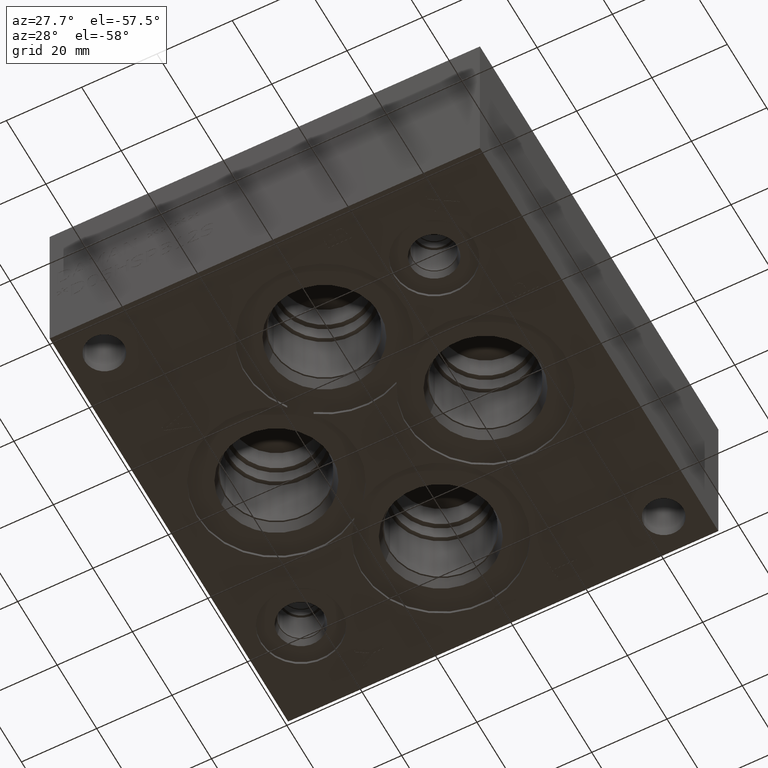
[diagram: clean part render]
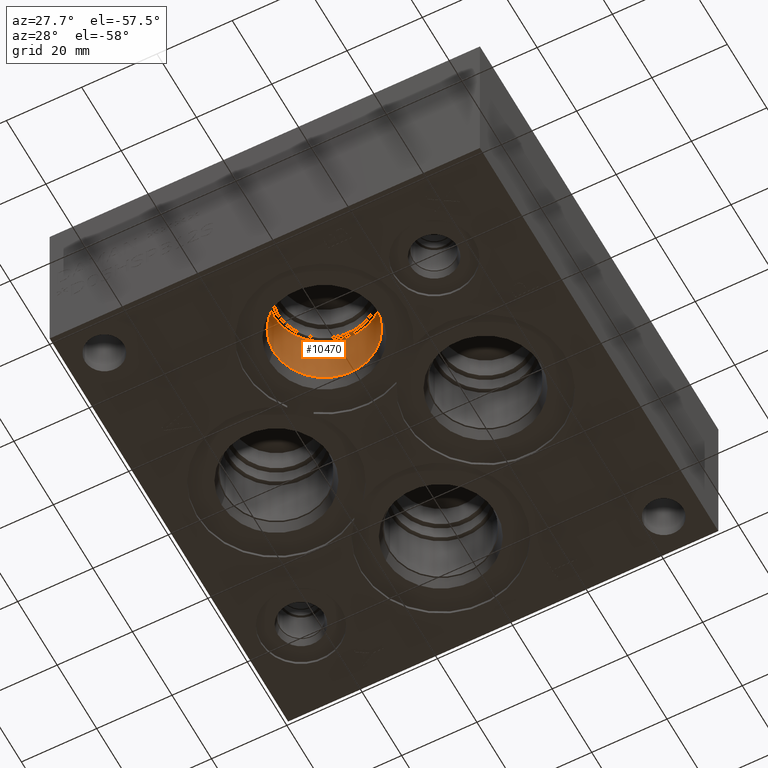
[diagram: same view with one face highlighted and labeled with its STEP entity id]
A machine part, auxiliary view. The second image highlights one B-rep face of the part: STEP entity #10470.
In plain terms, the highlighted cylindrical surface (bore or boss wall) has radius 13.495 mm, axis along (0, 0, -1).
Its self-contained STEP definition (entity closure, byte-faithful):
#68=CYLINDRICAL_SURFACE('',#10979,13.495);
#155=CIRCLE('',#10935,13.495);
#181=CIRCLE('',#10976,13.495);
#182=CIRCLE('',#10977,13.495);
#1205=FACE_OUTER_BOUND('',#1793,.T.);
#1793=EDGE_LOOP('',(#8958,#8959,#8960,#8961,#8962));
#2845=LINE('',#17663,#3866);
#3866=VECTOR('',#12972,13.495);
#4772=VERTEX_POINT('',#17574);
#4800=VERTEX_POINT('',#17656);
#4801=VERTEX_POINT('',#17657);
#6176=EDGE_CURVE('',#4772,#4772,#155,.T.);
#6214=EDGE_CURVE('',#4800,#4801,#181,.T.);
#6215=EDGE_CURVE('',#4801,#4800,#182,.T.);
#6217=EDGE_CURVE('',#4772,#4801,#2845,.T.);
#8958=ORIENTED_EDGE('',*,*,#6176,.T.);
#8959=ORIENTED_EDGE('',*,*,#6217,.T.);
#8960=ORIENTED_EDGE('',*,*,#6214,.F.);
#8961=ORIENTED_EDGE('',*,*,#6215,.F.);
#8962=ORIENTED_EDGE('',*,*,#6217,.F.);
#10470=ADVANCED_FACE('',(#1205),#68,.F.);
#10935=AXIS2_PLACEMENT_3D('',#17576,#12870,#12871);
#10976=AXIS2_PLACEMENT_3D('',#17658,#12964,#12965);
#10977=AXIS2_PLACEMENT_3D('',#17659,#12966,#12967);
#10979=AXIS2_PLACEMENT_3D('',#17662,#12970,#12971);
#12870=DIRECTION('center_axis',(0.,0.,-1.));
#12871=DIRECTION('ref_axis',(1.,0.,0.));
#12964=DIRECTION('center_axis',(0.,0.,-1.));
#12965=DIRECTION('ref_axis',(1.,0.,0.));
#12966=DIRECTION('center_axis',(0.,0.,-1.));
#12967=DIRECTION('ref_axis',(1.,0.,0.));
#12970=DIRECTION('center_axis',(0.,0.,-1.));
#12971=DIRECTION('ref_axis',(1.,0.,0.));
#12972=DIRECTION('',(0.,0.,1.));
#17574=CARTESIAN_POINT('',(43.655,30.1752,4.285));
#17576=CARTESIAN_POINT('Origin',(57.15,30.1752,4.285));
#17656=CARTESIAN_POINT('',(70.645,30.1752,19.8374));
#17657=CARTESIAN_POINT('',(43.655,30.1752,19.8374));
#17658=CARTESIAN_POINT('Origin',(57.15,30.1752,19.8374));
#17659=CARTESIAN_POINT('Origin',(57.15,30.1752,19.8374));
#17662=CARTESIAN_POINT('Origin',(57.15,30.1752,9.9187));
#17663=CARTESIAN_POINT('',(43.655,30.1752,9.9187));